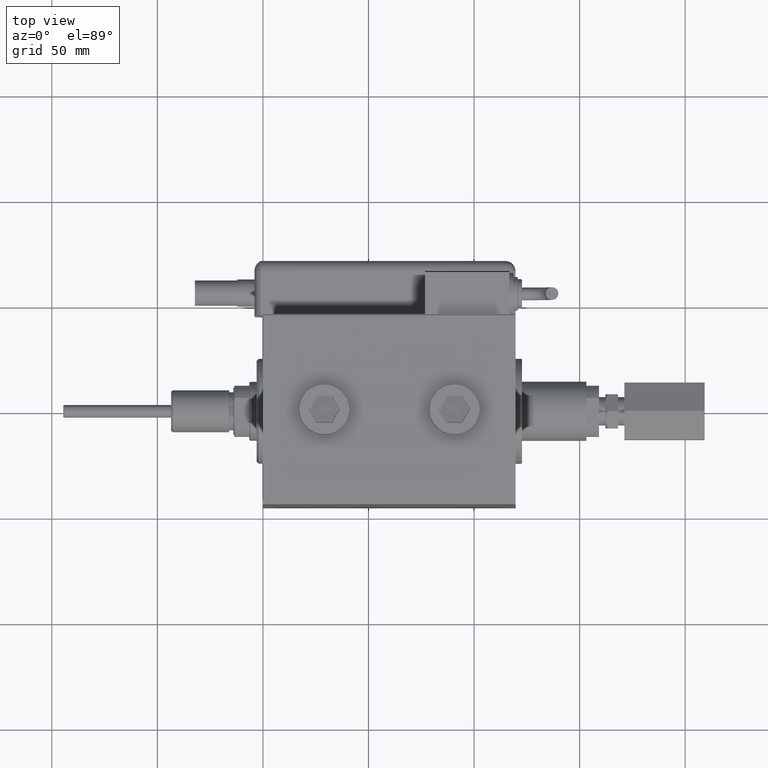
[diagram: clean part render]
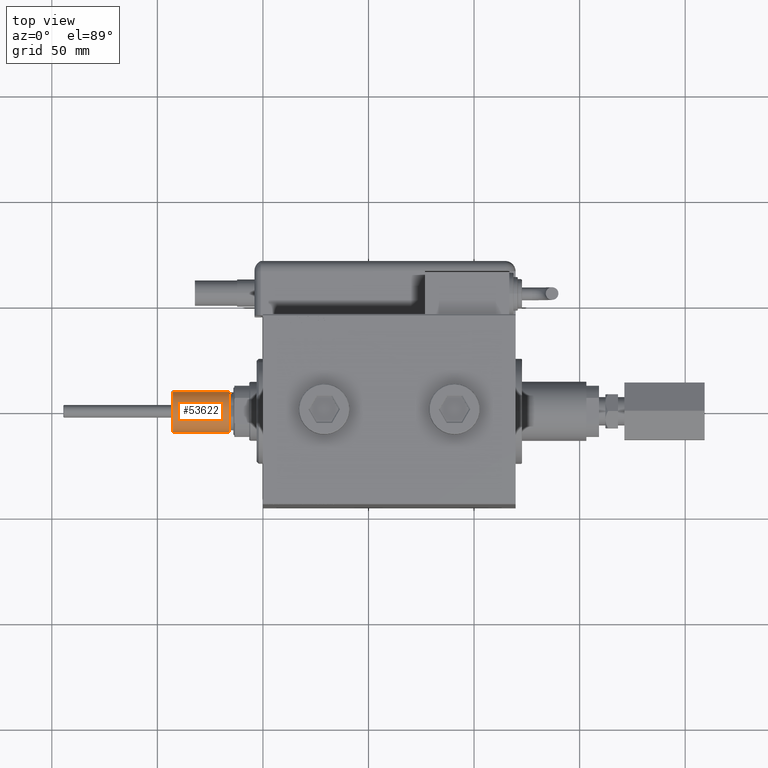
[diagram: same view with one face highlighted and labeled with its STEP entity id]
A machine part, top view. The second image highlights one B-rep face of the part: STEP entity #53622.
In plain terms, the highlighted cylindrical surface (edge-blend (fillet) strip) has radius 10 mm, axis along (-1, 0, 0).
Its self-contained STEP definition (entity closure, byte-faithful):
#729 = CIRCLE ( 'NONE', #10878, 10.00000000000000000 ) ;
#1080 = EDGE_CURVE ( 'NONE', #35570, #21590, #58669, .T. ) ;
#1898 = LINE ( 'NONE', #7882, #15535 ) ;
#2276 = EDGE_CURVE ( 'NONE', #41675, #4200, #1898, .T. ) ;
#3132 = DIRECTION ( 'NONE',  ( -0.000000000000000000, -0.000000000000000000, 1.000000000000000000 ) ) ;
#4200 = VERTEX_POINT ( 'NONE', #48106 ) ;
#4597 = DIRECTION ( 'NONE',  ( -1.000000000000000000, 0.000000000000000000, 0.000000000000000000 ) ) ;
#5326 = EDGE_LOOP ( 'NONE', ( #61207, #30544, #36221, #31035 ) ) ;
#6022 = DIRECTION ( 'NONE',  ( -0.000000000000000000, -0.000000000000000000, -1.000000000000000000 ) ) ;
#7882 = CARTESIAN_POINT ( 'NONE',  ( -10.00000000000000000, 0.000000000000000000, 27.50000000000000000 ) ) ;
#8483 = CARTESIAN_POINT ( 'NONE',  ( 0.000000000000000000, 0.000000000000000000, 0.7999999999999986011 ) ) ;
#8711 = CYLINDRICAL_SURFACE ( 'NONE', #53663, 10.00000000000000000 ) ;
#9636 = FACE_OUTER_BOUND ( 'NONE', #5326, .T. ) ;
#10878 = AXIS2_PLACEMENT_3D ( 'NONE', #58634, #15766, #59884 ) ;
#11912 = EDGE_CURVE ( 'NONE', #4200, #21590, #27036, .T. ) ;
#15535 = VECTOR ( 'NONE', #31237, 1000.000000000000000 ) ;
#15766 = DIRECTION ( 'NONE',  ( 0.000000000000000000, 0.000000000000000000, 1.000000000000000000 ) ) ;
#15980 = AXIS2_PLACEMENT_3D ( 'NONE', #8483, #3132, #46962 ) ;
#19426 = CARTESIAN_POINT ( 'NONE',  ( 0.000000000000000000, 0.000000000000000000, 27.50000000000000000 ) ) ;
#21590 = VERTEX_POINT ( 'NONE', #54157 ) ;
#24555 = VECTOR ( 'NONE', #6022, 1000.000000000000000 ) ;
#26809 = CARTESIAN_POINT ( 'NONE',  ( -10.00000000000000000, 0.000000000000000000, 27.50000000000000000 ) ) ;
#27036 = CIRCLE ( 'NONE', #15980, 10.00000000000000000 ) ;
#29041 = CARTESIAN_POINT ( 'NONE',  ( 10.00000000000000000, 1.224646799147353256E-15, 27.50000000000000000 ) ) ;
#30544 = ORIENTED_EDGE ( 'NONE', *, *, #36720, .F. ) ;
#31035 = ORIENTED_EDGE ( 'NONE', *, *, #11912, .T. ) ;
#31237 = DIRECTION ( 'NONE',  ( -0.000000000000000000, -0.000000000000000000, -1.000000000000000000 ) ) ;
#35570 = VERTEX_POINT ( 'NONE', #41710 ) ;
#36221 = ORIENTED_EDGE ( 'NONE', *, *, #2276, .T. ) ;
#36720 = EDGE_CURVE ( 'NONE', #41675, #35570, #729, .T. ) ;
#38031 = DIRECTION ( 'NONE',  ( -0.000000000000000000, -0.000000000000000000, -1.000000000000000000 ) ) ;
#41675 = VERTEX_POINT ( 'NONE', #26809 ) ;
#41710 = CARTESIAN_POINT ( 'NONE',  ( 10.00000000000000000, 1.224646799147353256E-15, 27.50000000000000000 ) ) ;
#46962 = DIRECTION ( 'NONE',  ( 1.000000000000000000, 0.000000000000000000, 0.000000000000000000 ) ) ;
#48106 = CARTESIAN_POINT ( 'NONE',  ( -10.00000000000000000, 0.000000000000000000, 0.7999999999999986011 ) ) ;
#53622 = ADVANCED_FACE ( 'NONE', ( #9636 ), #8711, .T. ) ;
#53663 = AXIS2_PLACEMENT_3D ( 'NONE', #19426, #38031, #4597 ) ;
#54157 = CARTESIAN_POINT ( 'NONE',  ( 10.00000000000000000, 1.224646799147353256E-15, 0.7999999999999986011 ) ) ;
#58634 = CARTESIAN_POINT ( 'NONE',  ( 0.000000000000000000, 0.000000000000000000, 27.50000000000000000 ) ) ;
#58669 = LINE ( 'NONE', #29041, #24555 ) ;
#59884 = DIRECTION ( 'NONE',  ( 1.000000000000000000, 0.000000000000000000, 0.000000000000000000 ) ) ;
#61207 = ORIENTED_EDGE ( 'NONE', *, *, #1080, .F. ) ;